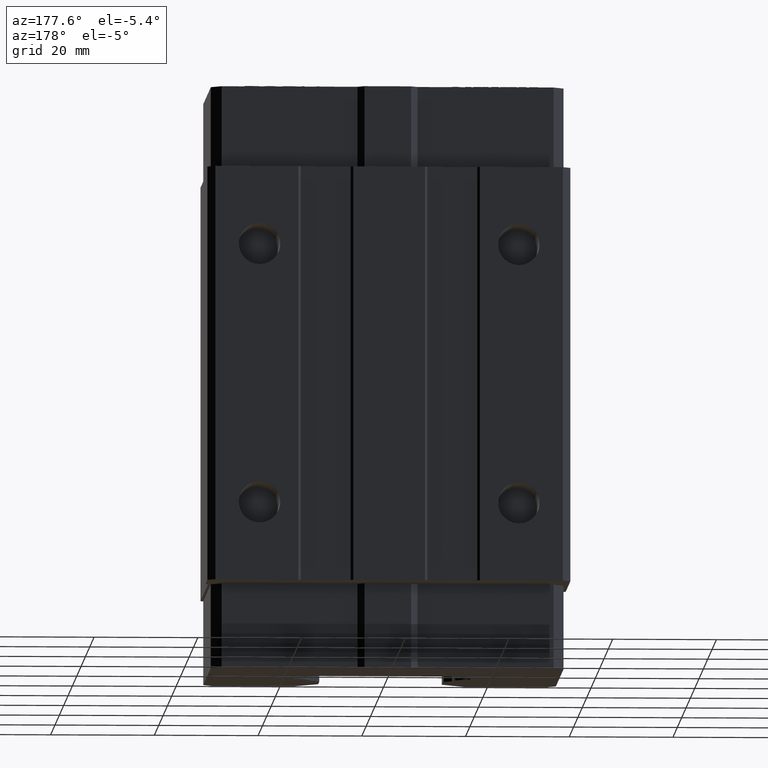
[diagram: clean part render]
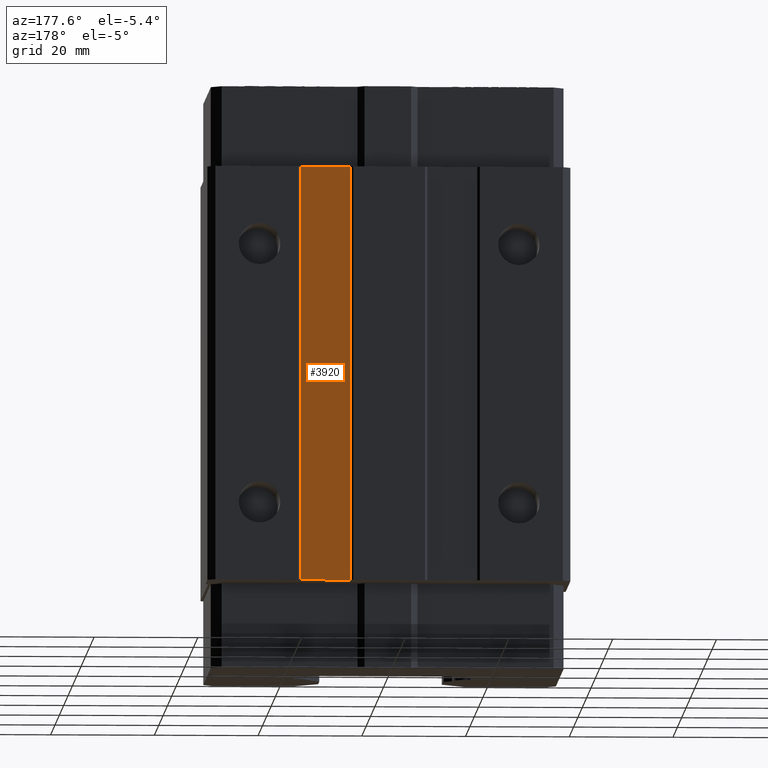
[diagram: same view with one face highlighted and labeled with its STEP entity id]
A machine part, auxiliary view. The second image highlights one B-rep face of the part: STEP entity #3920.
In plain terms, the highlighted planar face has unit normal (0, 1, 0).
Its self-contained STEP definition (entity closure, byte-faithful):
#134 = EDGE_CURVE ( 'NONE', #135, #136, #5653, .T. ) ;
#135 = VERTEX_POINT ( 'NONE', #5649 ) ;
#136 = VERTEX_POINT ( 'NONE', #5648 ) ;
#159 = EDGE_CURVE ( 'NONE', #160, #195, #5736, .T. ) ;
#160 = VERTEX_POINT ( 'NONE', #5732 ) ;
#195 = VERTEX_POINT ( 'NONE', #5806 ) ;
#3413 = ORIENTED_EDGE ( 'NONE', *, *, #3416, .T. ) ;
#3415 = EDGE_CURVE ( 'NONE', #135, #195, #11899, .T. ) ;
#3416 = EDGE_CURVE ( 'NONE', #136, #160, #11957, .T. ) ;
#3418 = ORIENTED_EDGE ( 'NONE', *, *, #159, .T. ) ;
#3422 = ORIENTED_EDGE ( 'NONE', *, *, #3415, .F. ) ;
#3437 = ORIENTED_EDGE ( 'NONE', *, *, #134, .T. ) ;
#3911 = EDGE_LOOP ( 'NONE', ( #3437, #3413, #3418, #3422 ) ) ;
#3920 = ADVANCED_FACE ( 'NONE', ( #12537 ), #12536, .T. ) ;
#5648 = CARTESIAN_POINT ( 'NONE',  ( 17.00000000144998300, 25.50000000145001900, -40.00000000000000000 ) ) ;
#5649 = CARTESIAN_POINT ( 'NONE',  ( 17.00000000144998300, 25.50000000145001900, 40.00000000000000000 ) ) ;
#5650 = DIRECTION ( 'NONE',  ( 0.0000000000000000000, 0.0000000000000000000, -1.000000000000000000 ) ) ;
#5651 = VECTOR ( 'NONE', #5650, 1000.000000000000000 ) ;
#5652 = CARTESIAN_POINT ( 'NONE',  ( 17.00000000145000100, 25.50000000145000100, -40.00000000000000000 ) ) ;
#5653 = LINE ( 'NONE', #5652, #5651 ) ;
#5732 = CARTESIAN_POINT ( 'NONE',  ( 7.400000001450000500, 25.50000000145000100, -40.00000000000000000 ) ) ;
#5733 = DIRECTION ( 'NONE',  ( 0.0000000000000000000, 0.0000000000000000000, 1.000000000000000000 ) ) ;
#5734 = VECTOR ( 'NONE', #5733, 1000.000000000000000 ) ;
#5735 = CARTESIAN_POINT ( 'NONE',  ( 7.400000001450000500, 25.50000000145000100, -40.00000000000000000 ) ) ;
#5736 = LINE ( 'NONE', #5735, #5734 ) ;
#5806 = CARTESIAN_POINT ( 'NONE',  ( 7.400000001450000500, 25.50000000145000100, 40.00000000000000000 ) ) ;
#11896 = DIRECTION ( 'NONE',  ( -1.000000000000000000, 0.0000000000000000000, 0.0000000000000000000 ) ) ;
#11897 = VECTOR ( 'NONE', #11896, 1000.000000000000000 ) ;
#11898 = CARTESIAN_POINT ( 'NONE',  ( 0.0000000000000000000, 25.50000000145000100, 40.00000000000000000 ) ) ;
#11899 = LINE ( 'NONE', #11898, #11897 ) ;
#11954 = DIRECTION ( 'NONE',  ( -1.000000000000000000, 0.0000000000000000000, 0.0000000000000000000 ) ) ;
#11955 = VECTOR ( 'NONE', #11954, 1000.000000000000000 ) ;
#11956 = CARTESIAN_POINT ( 'NONE',  ( 0.0000000000000000000, 25.50000000145000100, -40.00000000000000000 ) ) ;
#11957 = LINE ( 'NONE', #11956, #11955 ) ;
#12536 = PLANE ( 'NONE',  #12600 ) ;
#12537 = FACE_OUTER_BOUND ( 'NONE', #3911, .T. ) ;
#12597 = DIRECTION ( 'NONE',  ( 0.0000000000000000000, 0.0000000000000000000, 1.000000000000000000 ) ) ;
#12598 = DIRECTION ( 'NONE',  ( 0.0000000000000000000, 1.000000000000000000, 0.0000000000000000000 ) ) ;
#12599 = CARTESIAN_POINT ( 'NONE',  ( 17.00000000145000100, 25.50000000145000100, -40.00000000000000000 ) ) ;
#12600 = AXIS2_PLACEMENT_3D ( 'NONE', #12599, #12598, #12597 ) ;